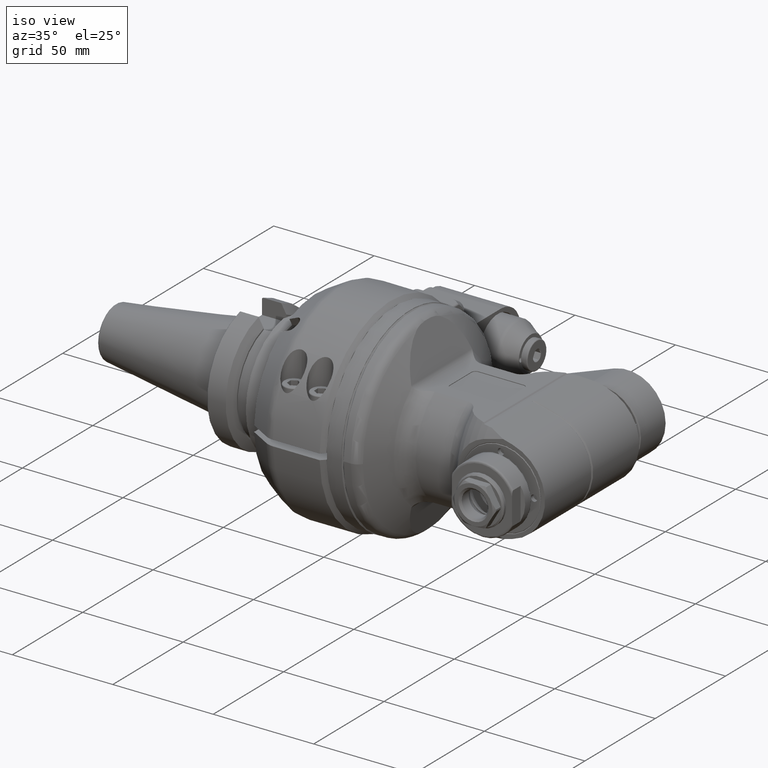
[diagram: clean part render]
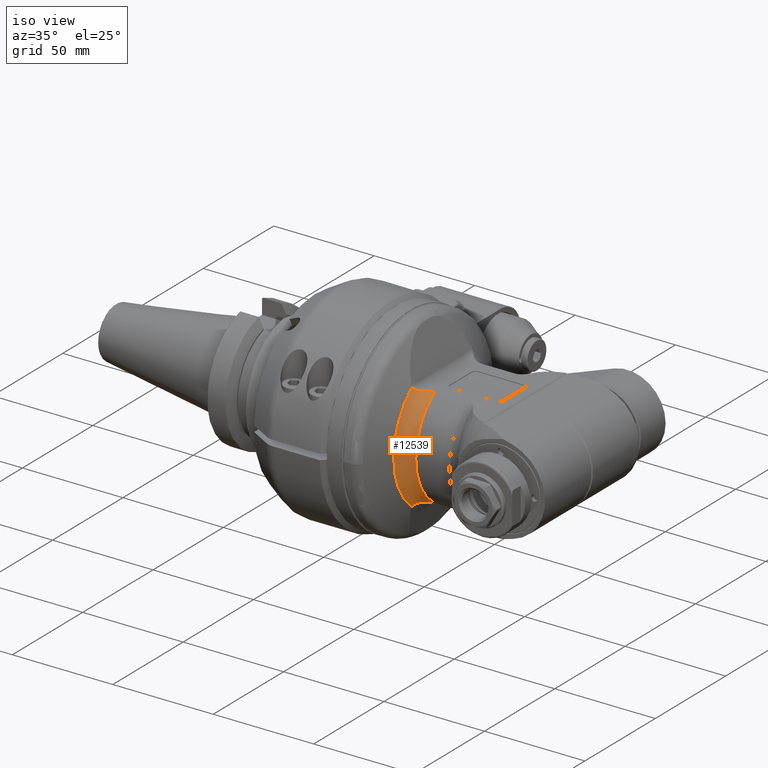
[diagram: same view with one face highlighted and labeled with its STEP entity id]
A machine part, iso view. The second image highlights one B-rep face of the part: STEP entity #12539.
In plain terms, the highlighted toroidal blend (fillet) surface has major radius 39 mm and minor (blend) radius 9 mm.
Its self-contained STEP definition (entity closure, byte-faithful):
#65=B_SPLINE_CURVE_WITH_KNOTS('',3,(#18844,#18845,#18846,#18847,#18848,
#18849,#18850,#18851),.UNSPECIFIED.,.F.,.F.,(4,2,2,4),(2.68007420425724,
2.85940536172762,3.00882891197884,3.1423743118532),.UNSPECIFIED.);
#70=B_SPLINE_CURVE_WITH_KNOTS('',3,(#18952,#18953,#18954,#18955,#18956,
#18957,#18958,#18959,#18960,#18961),.UNSPECIFIED.,.F.,.F.,(4,2,2,2,4),(-6.59385884258991,
-6.58447781946052,-6.47340065522955,-6.27608158427149,-6.12835446151529),
 .UNSPECIFIED.);
#77=B_SPLINE_CURVE_WITH_KNOTS('',3,(#19038,#19039,#19040,#19041,#19042,
#19043,#19044,#19045,#19046,#19047),.UNSPECIFIED.,.F.,.F.,(4,2,2,2,4),(3.59658856200033,
3.62659865115052,3.73684578082163,3.89042704672827,3.98683363644942),
 .UNSPECIFIED.);
#82=B_SPLINE_CURVE_WITH_KNOTS('',3,(#19338,#19339,#19340,#19341,#19342,
#19343,#19344,#19345),.UNSPECIFIED.,.F.,.F.,(4,2,2,4),(3.1423743118532,
3.27591971172755,3.42534326197877,3.60467441944328),.UNSPECIFIED.);
#231=TOROIDAL_SURFACE('',#13534,39.,9.);
#2841=FACE_OUTER_BOUND('',#3667,.T.);
#3667=EDGE_LOOP('',(#8811,#8812,#8813,#8814,#8815,#8816));
#4496=CIRCLE('',#13402,34.5);
#4566=CIRCLE('',#13532,30.);
#5173=VERTEX_POINT('',#18840);
#5175=VERTEX_POINT('',#18843);
#5197=VERTEX_POINT('',#18943);
#5201=VERTEX_POINT('',#18997);
#5208=VERTEX_POINT('',#19036);
#5289=VERTEX_POINT('',#19335);
#6471=EDGE_CURVE('',#5173,#5175,#65,.T.);
#6495=EDGE_CURVE('',#5197,#5173,#70,.T.);
#6502=EDGE_CURVE('',#5197,#5201,#4496,.T.);
#6510=EDGE_CURVE('',#5201,#5208,#77,.T.);
#6625=EDGE_CURVE('',#5289,#5208,#82,.T.);
#6652=EDGE_CURVE('',#5289,#5175,#4566,.T.);
#8811=ORIENTED_EDGE('',*,*,#6652,.T.);
#8812=ORIENTED_EDGE('',*,*,#6471,.F.);
#8813=ORIENTED_EDGE('',*,*,#6495,.F.);
#8814=ORIENTED_EDGE('',*,*,#6502,.T.);
#8815=ORIENTED_EDGE('',*,*,#6510,.T.);
#8816=ORIENTED_EDGE('',*,*,#6625,.F.);
#12539=ADVANCED_FACE('',(#2841),#231,.F.);
#13402=AXIS2_PLACEMENT_3D('',#19007,#15043,#15044);
#13532=AXIS2_PLACEMENT_3D('',#19458,#15362,#15363);
#13534=AXIS2_PLACEMENT_3D('',#19460,#15366,#15367);
#15043=DIRECTION('center_axis',(1.,0.,0.));
#15044=DIRECTION('ref_axis',(0.,-1.,0.));
#15362=DIRECTION('center_axis',(-1.,0.,0.));
#15363=DIRECTION('ref_axis',(0.,-1.,0.));
#15366=DIRECTION('center_axis',(-1.,0.,0.));
#15367=DIRECTION('ref_axis',(0.,-1.,-1.22464679914735E-16));
#18840=CARTESIAN_POINT('',(30.80083019732,-18.54823604147,25.00000000001));
#18843=CARTESIAN_POINT('',(35.16580758197,-16.58312395178,25.));
#18844=CARTESIAN_POINT('Ctrl Pts',(30.800830197335,-18.5482360414862,25.));
#18845=CARTESIAN_POINT('Ctrl Pts',(31.2768824718462,-18.1051437660546,25.));
#18846=CARTESIAN_POINT('Ctrl Pts',(31.7927287077257,-17.7134498027612,25.));
#18847=CARTESIAN_POINT('Ctrl Pts',(32.7382766269785,-17.1595326432425,25.));
#18848=CARTESIAN_POINT('Ctrl Pts',(33.2844305992261,-16.9167277905047,25.));
#18849=CARTESIAN_POINT('Ctrl Pts',(34.1920196550243,-16.6598919965139,25.));
#18850=CARTESIAN_POINT('Ctrl Pts',(34.7206562490555,-16.583123951777,25.));
#18851=CARTESIAN_POINT('Ctrl Pts',(35.16580758197,-16.583123951777,25.));
#18943=CARTESIAN_POINT('',(27.37157894791,-21.55092563199,26.94081669891));
#18952=CARTESIAN_POINT('Ctrl Pts',(27.3715789479245,-21.5509256318922,26.9408166989593));
#18953=CARTESIAN_POINT('Ctrl Pts',(27.3832154280211,-21.5428857417657,26.9214379414238));
#18954=CARTESIAN_POINT('Ctrl Pts',(27.3949674921055,-21.5345874428463,26.902239004249));
#18955=CARTESIAN_POINT('Ctrl Pts',(27.5472100386132,-21.425040439272,26.658135080755));
#18956=CARTESIAN_POINT('Ctrl Pts',(27.7176933102897,-21.280522285381,26.4344728475626));
#18957=CARTESIAN_POINT('Ctrl Pts',(28.2887044363584,-20.7807655001042,25.8431255043235));
#18958=CARTESIAN_POINT('Ctrl Pts',(28.7791301612318,-20.342597000736,25.488301742797));
#18959=CARTESIAN_POINT('Ctrl Pts',(29.8381138706679,-19.4155756278872,25.0874310035156));
#18960=CARTESIAN_POINT('Ctrl Pts',(30.3182108619809,-18.9974407001051,25.0000000000199));
#18961=CARTESIAN_POINT('Ctrl Pts',(30.800830197335,-18.5482360414862,25.));
#18997=CARTESIAN_POINT('',(27.37157894791,-21.55092563191,-26.94081669898));
#19007=CARTESIAN_POINT('Origin',(27.37157894791,0.,0.));
#19036=CARTESIAN_POINT('',(30.80083019737,-18.54823604143,-25.00000000001));
#19038=CARTESIAN_POINT('Ctrl Pts',(27.3715789479101,-21.5509256319022,-26.9408166989833));
#19039=CARTESIAN_POINT('Ctrl Pts',(27.4208401335489,-21.5168900372258,-26.8587798145909));
#19040=CARTESIAN_POINT('Ctrl Pts',(27.4721031814978,-21.4782962654302,-26.7801091443261));
#19041=CARTESIAN_POINT('Ctrl Pts',(27.7169404273544,-21.2852548148025,-26.4305321262481));
#19042=CARTESIAN_POINT('Ctrl Pts',(27.9572399572632,-21.0717129154017,-26.1620004341279));
#19043=CARTESIAN_POINT('Ctrl Pts',(28.6466925231107,-20.4603252622371,-25.5894490369269));
#19044=CARTESIAN_POINT('Ctrl Pts',(29.1461486309401,-20.0224758800888,-25.3103999101667));
#19045=CARTESIAN_POINT('Ctrl Pts',(30.0745482205551,-19.2074224565158,-25.0489408116075));
#19046=CARTESIAN_POINT('Ctrl Pts',(30.43928272816,-18.8847513768008,-25.0000000000107));
#19047=CARTESIAN_POINT('Ctrl Pts',(30.8008301973818,-18.5482360414427,-25.));
#19335=CARTESIAN_POINT('',(35.16580758197,-16.58312395178,-25.));
#19338=CARTESIAN_POINT('Ctrl Pts',(35.16580758197,-16.583123951777,-25.));
#19339=CARTESIAN_POINT('Ctrl Pts',(34.7206562490555,-16.583123951777,-25.));
#19340=CARTESIAN_POINT('Ctrl Pts',(34.1920196550243,-16.6598919965139,-25.));
#19341=CARTESIAN_POINT('Ctrl Pts',(33.2844305992261,-16.9167277905047,-25.));
#19342=CARTESIAN_POINT('Ctrl Pts',(32.7382766269785,-17.1595326432425,-25.));
#19343=CARTESIAN_POINT('Ctrl Pts',(31.7927287077426,-17.7134498027513,-25.));
#19344=CARTESIAN_POINT('Ctrl Pts',(31.2768824718798,-18.1051437660289,-25.));
#19345=CARTESIAN_POINT('Ctrl Pts',(30.8008301973818,-18.5482360414427,-25.));
#19458=CARTESIAN_POINT('Origin',(35.16580758197,0.,0.));
#19460=CARTESIAN_POINT('Origin',(35.16580758197,0.,0.));